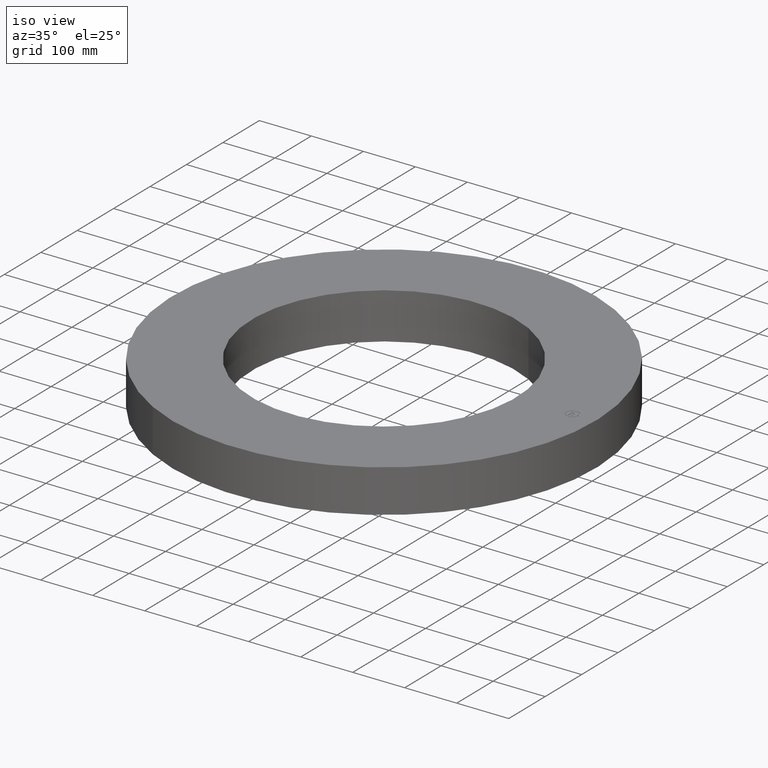
[diagram: clean part render]
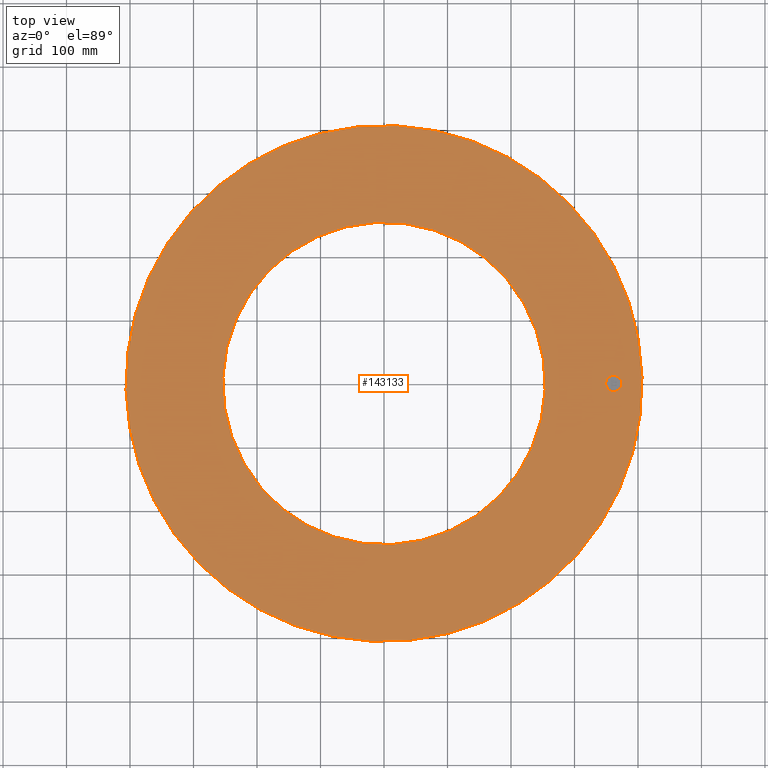
[diagram: tour spotlight — one face highlighted and labeled with its STEP entity id]
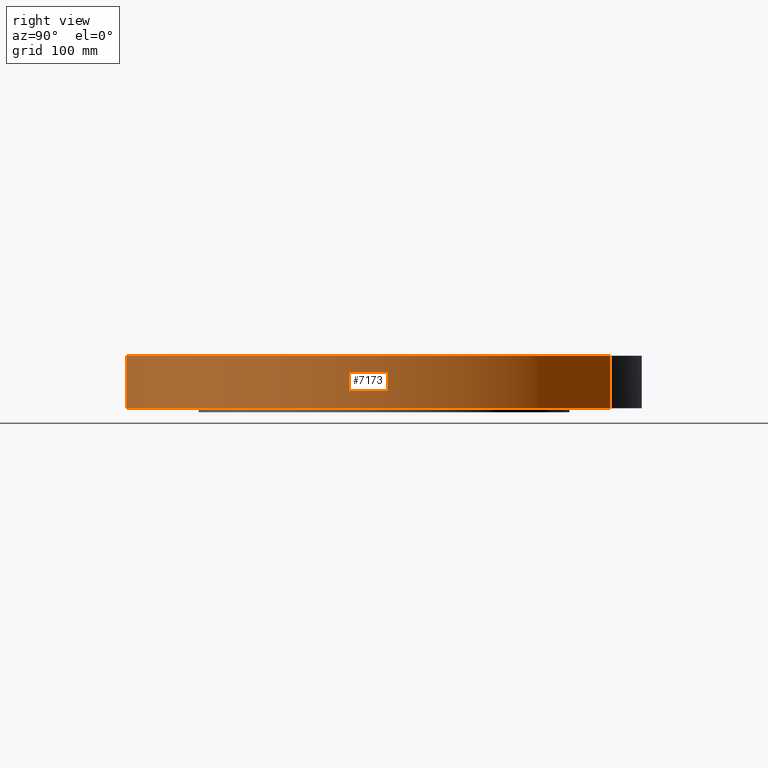
[diagram: tour spotlight — one face highlighted and labeled with its STEP entity id]
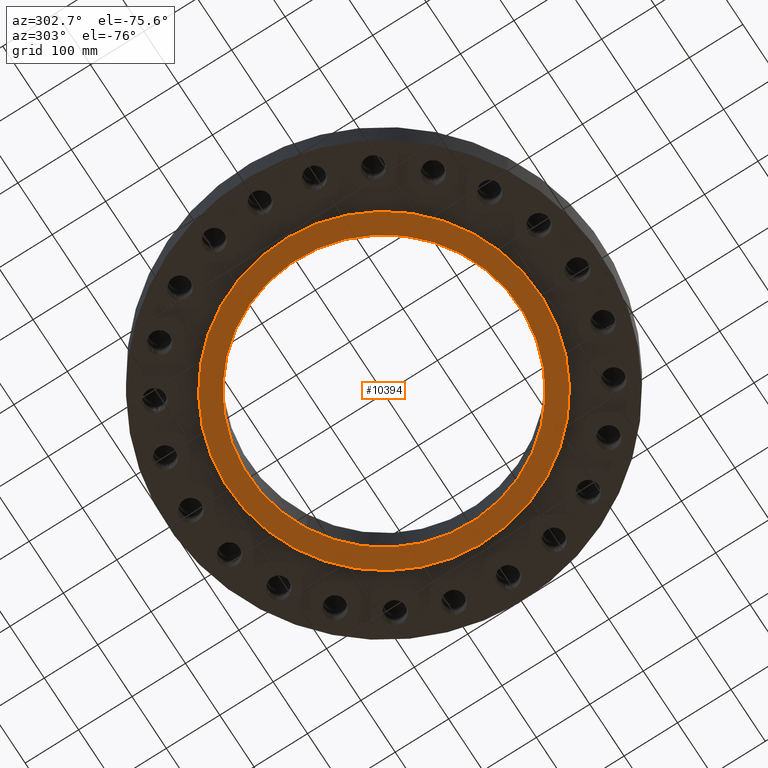
[diagram: tour spotlight — one face highlighted and labeled with its STEP entity id]
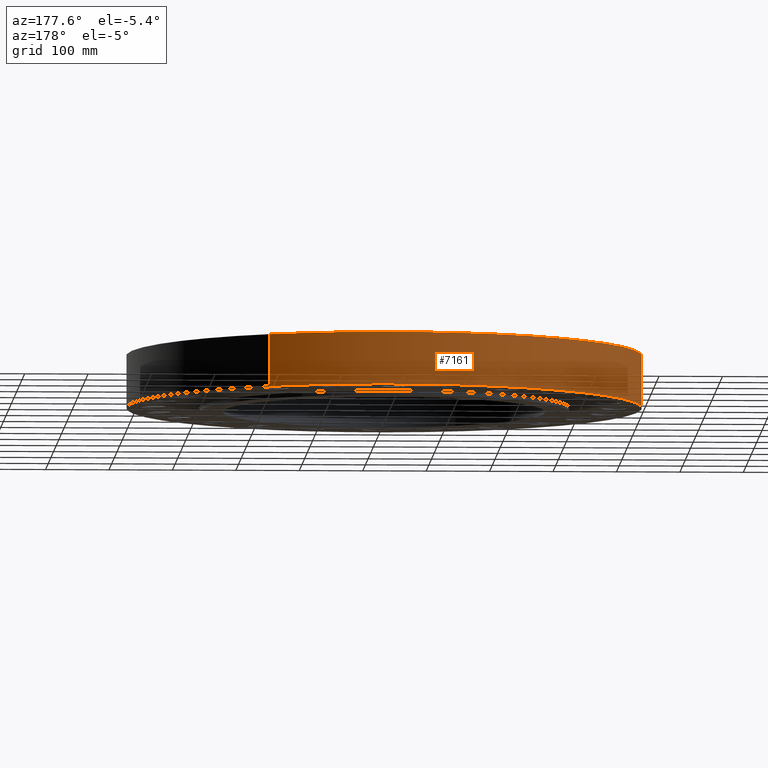
[diagram: tour spotlight — one face highlighted and labeled with its STEP entity id]
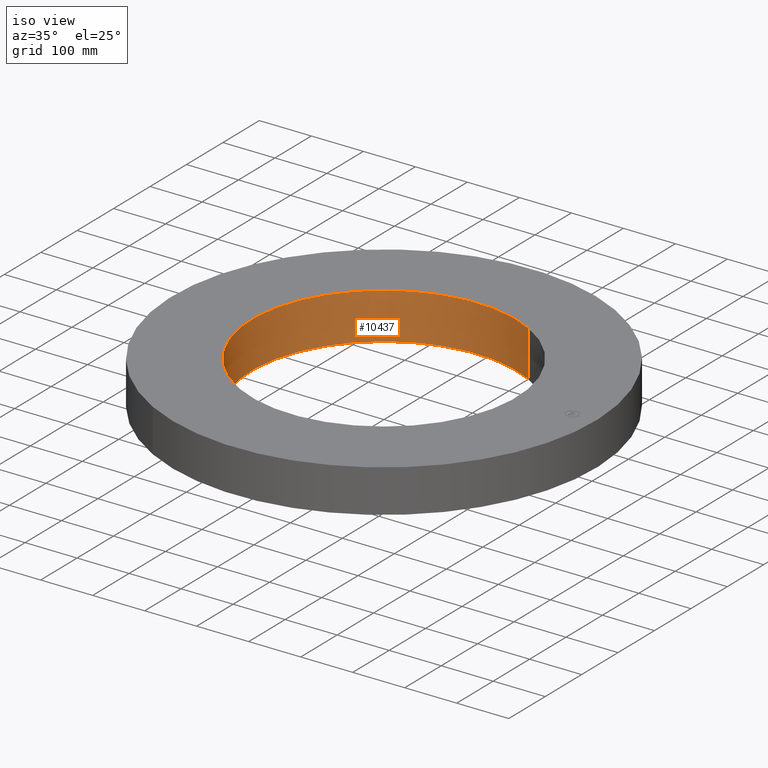
[diagram: tour spotlight — one face highlighted and labeled with its STEP entity id]
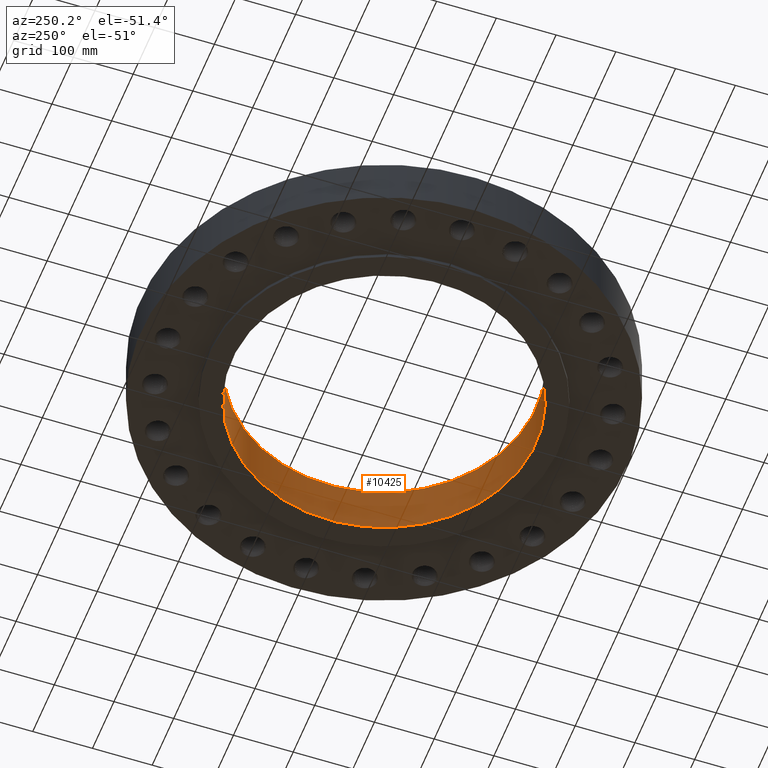
[diagram: tour spotlight — one face highlighted and labeled with its STEP entity id]
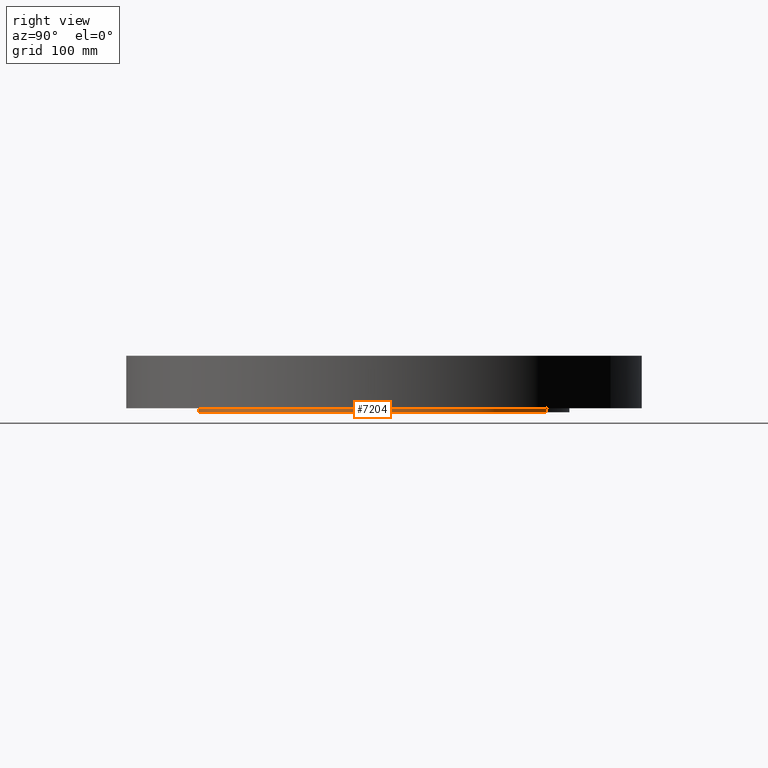
[diagram: tour spotlight — one face highlighted and labeled with its STEP entity id]
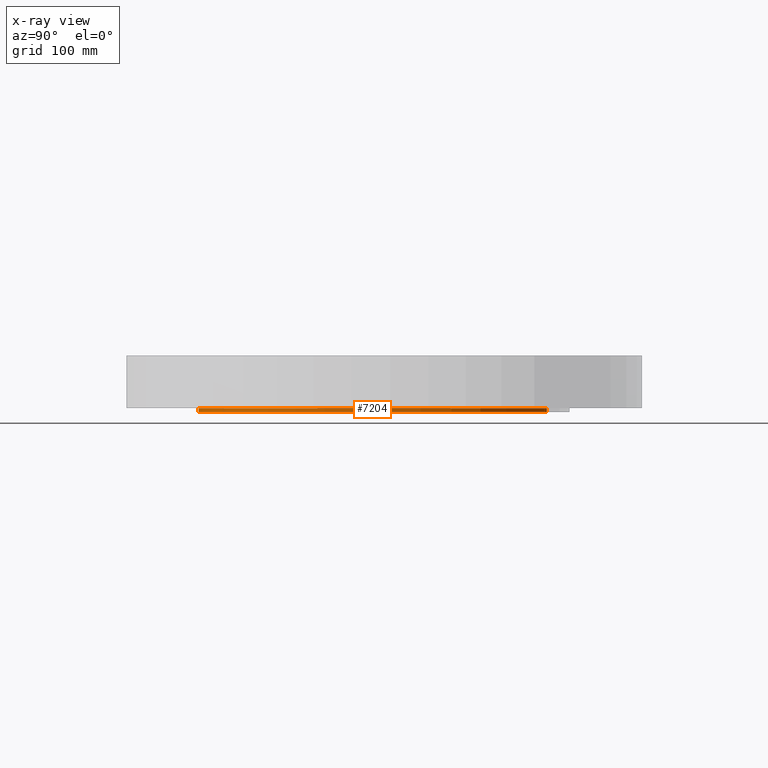
[diagram: x-ray of the same camera — body ghosted, this tour face saturated]
A machine part: a face-by-face anatomy tour. The part has 2794 B-rep faces; the first image is the clean iso view, then the 7 largest visible faces are spotlighted one at a time (largest first), each with its STEP entity span.

Face 1 — top view, entity #143133. In plain terms, the highlighted planar face has unit normal (0, 0, -1).
Definition (entity closure, byte-faithful):
#7145=AXIS2_PLACEMENT_3D('Circle Axis2P3D',#7143,#7144,$) ;
#7164=AXIS2_PLACEMENT_3D('Circle Axis2P3D',#7162,#7163,$) ;
#10402=AXIS2_PLACEMENT_3D('Circle Axis2P3D',#10400,#10401,$) ;
#10428=AXIS2_PLACEMENT_3D('Circle Axis2P3D',#10426,#10427,$) ;
#143105=AXIS2_PLACEMENT_3D('Plane Axis2P3D',#143102,#143103,#143104) ;
#143117=AXIS2_PLACEMENT_3D('Circle Axis2P3D',#143115,#143116,$) ;
#143126=AXIS2_PLACEMENT_3D('Circle Axis2P3D',#143124,#143125,$) ;
#7140=CARTESIAN_POINT('Vertex',(-7.6708086177,-14.0413209903,3.25000000001)) ;
#7143=CARTESIAN_POINT('Axis2P3D Location',(0.,0.,3.25000000001)) ;
#7147=CARTESIAN_POINT('Vertex',(7.6708086177,14.0413209903,3.25000000001)) ;
#7162=CARTESIAN_POINT('Axis2P3D Location',(0.,0.,3.25000000001)) ;
#10400=CARTESIAN_POINT('Axis2P3D Location',(0.,0.,3.25000000001)) ;
#10404=CARTESIAN_POINT('Vertex',(4.79425538606,8.77582561894,3.25000000001)) ;
#10406=CARTESIAN_POINT('Vertex',(-4.79425538606,-8.77582561894,3.25000000001)) ;
#10426=CARTESIAN_POINT('Axis2P3D Location',(0.,0.,3.25000000001)) ;
#143102=CARTESIAN_POINT('Axis2P3D Location',(0.,10.,3.25000000001)) ;
#143115=CARTESIAN_POINT('Axis2P3D Location',(14.2500000001,0.,3.25000000001)) ;
#143119=CARTESIAN_POINT('Vertex',(14.2500000001,-0.499999995002,3.25000000001)) ;
#143121=CARTESIAN_POINT('Vertex',(14.2500000001,0.499999995002,3.25000000001)) ;
#143124=CARTESIAN_POINT('Axis2P3D Location',(14.2500000001,0.,3.25000000001)) ;
#7144=DIRECTION('Axis2P3D Direction',(0.,0.,-0.0393700787402)) ;
#7163=DIRECTION('Axis2P3D Direction',(0.,0.,-0.0393700787402)) ;
#10401=DIRECTION('Axis2P3D Direction',(0.,0.,-0.0393700787402)) ;
#10427=DIRECTION('Axis2P3D Direction',(0.,0.,-0.0393700787402)) ;
#143103=DIRECTION('Axis2P3D Direction',(0.,0.,-0.0393700787402)) ;
#143104=DIRECTION('Axis2P3D XDirection',(0.0393700787402,0.,0.)) ;
#143116=DIRECTION('Axis2P3D Direction',(0.,0.,-0.0393700787402)) ;
#143125=DIRECTION('Axis2P3D Direction',(0.,0.,-0.0393700787402)) ;
#143108=ORIENTED_EDGE('',*,*,#7166,.F.) ;
#143109=ORIENTED_EDGE('',*,*,#7149,.F.) ;
#143112=ORIENTED_EDGE('',*,*,#10430,.T.) ;
#143113=ORIENTED_EDGE('',*,*,#10408,.T.) ;
#143130=ORIENTED_EDGE('',*,*,#143123,.F.) ;
#143131=ORIENTED_EDGE('',*,*,#143128,.F.) ;
#143114=FACE_BOUND('',#143111,.T.) ;
#143132=FACE_BOUND('',#143129,.T.) ;
#143133=ADVANCED_FACE('PartBody',(#143110,#143114,#143132),#143106,.F.) ;
#7146=CIRCLE('generated circle',#7145,16.0000000001) ;
#7165=CIRCLE('generated circle',#7164,16.0000000001) ;
#10403=CIRCLE('generated circle',#10402,10.) ;
#10429=CIRCLE('generated circle',#10428,10.) ;
#143118=CIRCLE('generated circle',#143117,0.499999995002) ;
#143127=CIRCLE('generated circle',#143126,0.499999995002) ;
#7149=EDGE_CURVE('',#7141,#7148,#7146,.T.) ;
#7166=EDGE_CURVE('',#7148,#7141,#7165,.T.) ;
#10408=EDGE_CURVE('',#10405,#10407,#10403,.T.) ;
#10430=EDGE_CURVE('',#10407,#10405,#10429,.T.) ;
#143123=EDGE_CURVE('',#143120,#143122,#143118,.F.) ;
#143128=EDGE_CURVE('',#143122,#143120,#143127,.F.) ;
#143107=EDGE_LOOP('',(#143108,#143109)) ;
#143111=EDGE_LOOP('',(#143112,#143113)) ;
#143129=EDGE_LOOP('',(#143130,#143131)) ;
#143110=FACE_OUTER_BOUND('',#143107,.T.) ;
#143106=PLANE('',#143105) ;
#7141=VERTEX_POINT('',#7140) ;
#7148=VERTEX_POINT('',#7147) ;
#10405=VERTEX_POINT('',#10404) ;
#10407=VERTEX_POINT('',#10406) ;
#143120=VERTEX_POINT('',#143119) ;
#143122=VERTEX_POINT('',#143121) ;

Face 2 — right view, entity #7173. In plain terms, the highlighted cylindrical surface (partial cylindrical patch) has radius 406.4 mm, axis along (0, 0, -1).
Definition (entity closure, byte-faithful):
#5994=AXIS2_PLACEMENT_3D('Circle Axis2P3D',#5992,#5993,$) ;
#7134=AXIS2_PLACEMENT_3D('Cylinder Axis2P3D',#7131,#7132,#7133) ;
#7164=AXIS2_PLACEMENT_3D('Circle Axis2P3D',#7162,#7163,$) ;
#5987=CARTESIAN_POINT('Vertex',(-7.6708086177,-14.0413209903,-4.9234457281E-014)) ;
#5989=CARTESIAN_POINT('Vertex',(7.6708086177,14.0413209903,-4.9234457281E-014)) ;
#5992=CARTESIAN_POINT('Axis2P3D Location',(0.,0.,0.)) ;
#7131=CARTESIAN_POINT('Axis2P3D Location',(0.,0.,1.50000000001)) ;
#7136=CARTESIAN_POINT('Line Origine',(-7.6708086177,-14.0413209903,1.62500000001)) ;
#7140=CARTESIAN_POINT('Vertex',(-7.6708086177,-14.0413209903,3.25000000001)) ;
#7147=CARTESIAN_POINT('Vertex',(7.6708086177,14.0413209903,3.25000000001)) ;
#7150=CARTESIAN_POINT('Line Origine',(7.6708086177,14.0413209903,1.62500000001)) ;
#7162=CARTESIAN_POINT('Axis2P3D Location',(0.,0.,3.25000000001)) ;
#5993=DIRECTION('Axis2P3D Direction',(0.,0.,-0.0393700787402)) ;
#7132=DIRECTION('Axis2P3D Direction',(0.,0.,-0.0393700787402)) ;
#7133=DIRECTION('Axis2P3D XDirection',(0.0188750212049,0.0345504945626,0.)) ;
#7137=DIRECTION('Vector Direction',(0.,0.,-0.0393700787402)) ;
#7151=DIRECTION('Vector Direction',(0.,0.,-0.0393700787402)) ;
#7163=DIRECTION('Axis2P3D Direction',(0.,0.,-0.0393700787402)) ;
#7138=VECTOR('Line Direction',#7137,0.0393700787402) ;
#7152=VECTOR('Line Direction',#7151,0.0393700787402) ;
#7168=ORIENTED_EDGE('',*,*,#5996,.F.) ;
#7169=ORIENTED_EDGE('',*,*,#7154,.T.) ;
#7170=ORIENTED_EDGE('',*,*,#7166,.T.) ;
#7171=ORIENTED_EDGE('',*,*,#7142,.F.) ;
#7173=ADVANCED_FACE('PartBody',(#7172),#7135,.T.) ;
#5995=CIRCLE('generated circle',#5994,16.0000000001) ;
#7165=CIRCLE('generated circle',#7164,16.0000000001) ;
#7135=CYLINDRICAL_SURFACE('generated cylinder',#7134,16.0000000001) ;
#5996=EDGE_CURVE('',#5990,#5988,#5995,.T.) ;
#7142=EDGE_CURVE('',#5988,#7141,#7139,.F.) ;
#7154=EDGE_CURVE('',#5990,#7148,#7153,.F.) ;
#7166=EDGE_CURVE('',#7148,#7141,#7165,.T.) ;
#7167=EDGE_LOOP('',(#7168,#7169,#7170,#7171)) ;
#7172=FACE_OUTER_BOUND('',#7167,.T.) ;
#7139=LINE('Line',#7136,#7138) ;
#7153=LINE('Line',#7150,#7152) ;
#5988=VERTEX_POINT('',#5987) ;
#5990=VERTEX_POINT('',#5989) ;
#7141=VERTEX_POINT('',#7140) ;
#7148=VERTEX_POINT('',#7147) ;

Face 3 — auxiliary view, entity #10394. In plain terms, the highlighted planar face has unit normal (0, 0, -1).
Definition (entity closure, byte-faithful):
#7181=AXIS2_PLACEMENT_3D('Circle Axis2P3D',#7179,#7180,$) ;
#7207=AXIS2_PLACEMENT_3D('Circle Axis2P3D',#7205,#7206,$) ;
#10370=AXIS2_PLACEMENT_3D('Plane Axis2P3D',#10367,#10368,#10369) ;
#10378=AXIS2_PLACEMENT_3D('Circle Axis2P3D',#10376,#10377,$) ;
#10387=AXIS2_PLACEMENT_3D('Circle Axis2P3D',#10385,#10386,$) ;
#7179=CARTESIAN_POINT('Axis2P3D Location',(0.,0.,-0.250000000001)) ;
#7183=CARTESIAN_POINT('Vertex',(5.51339369397,10.0921994618,-0.250000000001)) ;
#7185=CARTESIAN_POINT('Vertex',(-5.51339369397,-10.0921994618,-0.250000000001)) ;
#7205=CARTESIAN_POINT('Axis2P3D Location',(0.,0.,-0.250000000001)) ;
#10367=CARTESIAN_POINT('Axis2P3D Location',(0.,11.5,-0.250000000001)) ;
#10376=CARTESIAN_POINT('Axis2P3D Location',(0.,0.,-0.250000000001)) ;
#10380=CARTESIAN_POINT('Vertex',(4.79425538606,8.77582561894,-0.250000000001)) ;
#10382=CARTESIAN_POINT('Vertex',(-4.79425538606,-8.77582561894,-0.250000000001)) ;
#10385=CARTESIAN_POINT('Axis2P3D Location',(0.,0.,-0.250000000001)) ;
#7180=DIRECTION('Axis2P3D Direction',(0.,0.,-0.0393700787402)) ;
#7206=DIRECTION('Axis2P3D Direction',(0.,0.,-0.0393700787402)) ;
#10368=DIRECTION('Axis2P3D Direction',(0.,0.,-0.0393700787402)) ;
#10369=DIRECTION('Axis2P3D XDirection',(0.0393700787402,0.,0.)) ;
#10377=DIRECTION('Axis2P3D Direction',(0.,0.,-0.0393700787402)) ;
#10386=DIRECTION('Axis2P3D Direction',(0.,0.,-0.0393700787402)) ;
#10373=ORIENTED_EDGE('',*,*,#7209,.T.) ;
#10374=ORIENTED_EDGE('',*,*,#7187,.T.) ;
#10391=ORIENTED_EDGE('',*,*,#10384,.F.) ;
#10392=ORIENTED_EDGE('',*,*,#10389,.F.) ;
#10393=FACE_BOUND('',#10390,.T.) ;
#10394=ADVANCED_FACE('PartBody',(#10375,#10393),#10371,.T.) ;
#7182=CIRCLE('generated circle',#7181,11.5) ;
#7208=CIRCLE('generated circle',#7207,11.5) ;
#10379=CIRCLE('generated circle',#10378,10.) ;
#10388=CIRCLE('generated circle',#10387,10.) ;
#7187=EDGE_CURVE('',#7184,#7186,#7182,.T.) ;
#7209=EDGE_CURVE('',#7186,#7184,#7208,.T.) ;
#10384=EDGE_CURVE('',#10381,#10383,#10379,.T.) ;
#10389=EDGE_CURVE('',#10383,#10381,#10388,.T.) ;
#10372=EDGE_LOOP('',(#10373,#10374)) ;
#10390=EDGE_LOOP('',(#10391,#10392)) ;
#10375=FACE_OUTER_BOUND('',#10372,.T.) ;
#10371=PLANE('',#10370) ;
#7184=VERTEX_POINT('',#7183) ;
#7186=VERTEX_POINT('',#7185) ;
#10381=VERTEX_POINT('',#10380) ;
#10383=VERTEX_POINT('',#10382) ;

Face 4 — auxiliary view, entity #7161. In plain terms, the highlighted cylindrical surface (partial cylindrical patch) has radius 406.4 mm, axis along (0, 0, -1).
Definition (entity closure, byte-faithful):
#5985=AXIS2_PLACEMENT_3D('Circle Axis2P3D',#5983,#5984,$) ;
#7134=AXIS2_PLACEMENT_3D('Cylinder Axis2P3D',#7131,#7132,#7133) ;
#7145=AXIS2_PLACEMENT_3D('Circle Axis2P3D',#7143,#7144,$) ;
#5983=CARTESIAN_POINT('Axis2P3D Location',(0.,0.,0.)) ;
#5987=CARTESIAN_POINT('Vertex',(-7.6708086177,-14.0413209903,-4.9234457281E-014)) ;
#5989=CARTESIAN_POINT('Vertex',(7.6708086177,14.0413209903,-4.9234457281E-014)) ;
#7131=CARTESIAN_POINT('Axis2P3D Location',(0.,0.,1.50000000001)) ;
#7136=CARTESIAN_POINT('Line Origine',(-7.6708086177,-14.0413209903,1.62500000001)) ;
#7140=CARTESIAN_POINT('Vertex',(-7.6708086177,-14.0413209903,3.25000000001)) ;
#7143=CARTESIAN_POINT('Axis2P3D Location',(0.,0.,3.25000000001)) ;
#7147=CARTESIAN_POINT('Vertex',(7.6708086177,14.0413209903,3.25000000001)) ;
#7150=CARTESIAN_POINT('Line Origine',(7.6708086177,14.0413209903,1.62500000001)) ;
#5984=DIRECTION('Axis2P3D Direction',(0.,0.,-0.0393700787402)) ;
#7132=DIRECTION('Axis2P3D Direction',(0.,0.,-0.0393700787402)) ;
#7133=DIRECTION('Axis2P3D XDirection',(0.0188750212049,0.0345504945626,0.)) ;
#7137=DIRECTION('Vector Direction',(0.,0.,-0.0393700787402)) ;
#7144=DIRECTION('Axis2P3D Direction',(0.,0.,-0.0393700787402)) ;
#7151=DIRECTION('Vector Direction',(0.,0.,-0.0393700787402)) ;
#7138=VECTOR('Line Direction',#7137,0.0393700787402) ;
#7152=VECTOR('Line Direction',#7151,0.0393700787402) ;
#7156=ORIENTED_EDGE('',*,*,#5991,.F.) ;
#7157=ORIENTED_EDGE('',*,*,#7142,.T.) ;
#7158=ORIENTED_EDGE('',*,*,#7149,.T.) ;
#7159=ORIENTED_EDGE('',*,*,#7154,.F.) ;
#7161=ADVANCED_FACE('PartBody',(#7160),#7135,.T.) ;
#5986=CIRCLE('generated circle',#5985,16.0000000001) ;
#7146=CIRCLE('generated circle',#7145,16.0000000001) ;
#7135=CYLINDRICAL_SURFACE('generated cylinder',#7134,16.0000000001) ;
#5991=EDGE_CURVE('',#5988,#5990,#5986,.T.) ;
#7142=EDGE_CURVE('',#5988,#7141,#7139,.F.) ;
#7149=EDGE_CURVE('',#7141,#7148,#7146,.T.) ;
#7154=EDGE_CURVE('',#5990,#7148,#7153,.F.) ;
#7155=EDGE_LOOP('',(#7156,#7157,#7158,#7159)) ;
#7160=FACE_OUTER_BOUND('',#7155,.T.) ;
#7139=LINE('Line',#7136,#7138) ;
#7153=LINE('Line',#7150,#7152) ;
#5988=VERTEX_POINT('',#5987) ;
#5990=VERTEX_POINT('',#5989) ;
#7141=VERTEX_POINT('',#7140) ;
#7148=VERTEX_POINT('',#7147) ;

Face 5 — iso view, entity #10437. In plain terms, the highlighted cylindrical surface (partial cylindrical patch) has radius 254 mm, axis along (0, 0, -1).
Definition (entity closure, byte-faithful):
#10387=AXIS2_PLACEMENT_3D('Circle Axis2P3D',#10385,#10386,$) ;
#10398=AXIS2_PLACEMENT_3D('Cylinder Axis2P3D',#10395,#10396,#10397) ;
#10428=AXIS2_PLACEMENT_3D('Circle Axis2P3D',#10426,#10427,$) ;
#10380=CARTESIAN_POINT('Vertex',(4.79425538606,8.77582561894,-0.250000000001)) ;
#10382=CARTESIAN_POINT('Vertex',(-4.79425538606,-8.77582561894,-0.250000000001)) ;
#10385=CARTESIAN_POINT('Axis2P3D Location',(0.,0.,-0.250000000001)) ;
#10395=CARTESIAN_POINT('Axis2P3D Location',(0.,0.,1.50000000001)) ;
#10404=CARTESIAN_POINT('Vertex',(4.79425538606,8.77582561894,3.25000000001)) ;
#10406=CARTESIAN_POINT('Vertex',(-4.79425538606,-8.77582561894,3.25000000001)) ;
#10409=CARTESIAN_POINT('Line Origine',(4.79425538606,8.77582561894,1.50000000001)) ;
#10414=CARTESIAN_POINT('Line Origine',(-4.79425538606,-8.77582561894,1.50000000001)) ;
#10426=CARTESIAN_POINT('Axis2P3D Location',(0.,0.,3.25000000001)) ;
#10386=DIRECTION('Axis2P3D Direction',(0.,0.,-0.0393700787402)) ;
#10396=DIRECTION('Axis2P3D Direction',(0.,0.,-0.0393700787402)) ;
#10397=DIRECTION('Axis2P3D XDirection',(-0.0188750212049,-0.0345504945626,0.)) ;
#10410=DIRECTION('Vector Direction',(0.,0.,-0.0393700787402)) ;
#10415=DIRECTION('Vector Direction',(0.,0.,-0.0393700787402)) ;
#10427=DIRECTION('Axis2P3D Direction',(0.,0.,-0.0393700787402)) ;
#10411=VECTOR('Line Direction',#10410,0.0393700787402) ;
#10416=VECTOR('Line Direction',#10415,0.0393700787402) ;
#10432=ORIENTED_EDGE('',*,*,#10430,.F.) ;
#10433=ORIENTED_EDGE('',*,*,#10418,.T.) ;
#10434=ORIENTED_EDGE('',*,*,#10389,.T.) ;
#10435=ORIENTED_EDGE('',*,*,#10413,.F.) ;
#10437=ADVANCED_FACE('PartBody',(#10436),#10399,.F.) ;
#10388=CIRCLE('generated circle',#10387,10.) ;
#10429=CIRCLE('generated circle',#10428,10.) ;
#10399=CYLINDRICAL_SURFACE('generated cylinder',#10398,10.) ;
#10389=EDGE_CURVE('',#10383,#10381,#10388,.T.) ;
#10413=EDGE_CURVE('',#10405,#10381,#10412,.T.) ;
#10418=EDGE_CURVE('',#10407,#10383,#10417,.T.) ;
#10430=EDGE_CURVE('',#10407,#10405,#10429,.T.) ;
#10431=EDGE_LOOP('',(#10432,#10433,#10434,#10435)) ;
#10436=FACE_OUTER_BOUND('',#10431,.T.) ;
#10412=LINE('Line',#10409,#10411) ;
#10417=LINE('Line',#10414,#10416) ;
#10381=VERTEX_POINT('',#10380) ;
#10383=VERTEX_POINT('',#10382) ;
#10405=VERTEX_POINT('',#10404) ;
#10407=VERTEX_POINT('',#10406) ;

Face 6 — auxiliary view, entity #10425. In plain terms, the highlighted cylindrical surface (partial cylindrical patch) has radius 254 mm, axis along (0, 0, -1).
Definition (entity closure, byte-faithful):
#10378=AXIS2_PLACEMENT_3D('Circle Axis2P3D',#10376,#10377,$) ;
#10398=AXIS2_PLACEMENT_3D('Cylinder Axis2P3D',#10395,#10396,#10397) ;
#10402=AXIS2_PLACEMENT_3D('Circle Axis2P3D',#10400,#10401,$) ;
#10376=CARTESIAN_POINT('Axis2P3D Location',(0.,0.,-0.250000000001)) ;
#10380=CARTESIAN_POINT('Vertex',(4.79425538606,8.77582561894,-0.250000000001)) ;
#10382=CARTESIAN_POINT('Vertex',(-4.79425538606,-8.77582561894,-0.250000000001)) ;
#10395=CARTESIAN_POINT('Axis2P3D Location',(0.,0.,1.50000000001)) ;
#10400=CARTESIAN_POINT('Axis2P3D Location',(0.,0.,3.25000000001)) ;
#10404=CARTESIAN_POINT('Vertex',(4.79425538606,8.77582561894,3.25000000001)) ;
#10406=CARTESIAN_POINT('Vertex',(-4.79425538606,-8.77582561894,3.25000000001)) ;
#10409=CARTESIAN_POINT('Line Origine',(4.79425538606,8.77582561894,1.50000000001)) ;
#10414=CARTESIAN_POINT('Line Origine',(-4.79425538606,-8.77582561894,1.50000000001)) ;
#10377=DIRECTION('Axis2P3D Direction',(0.,0.,-0.0393700787402)) ;
#10396=DIRECTION('Axis2P3D Direction',(0.,0.,-0.0393700787402)) ;
#10397=DIRECTION('Axis2P3D XDirection',(-0.0188750212049,-0.0345504945626,0.)) ;
#10401=DIRECTION('Axis2P3D Direction',(0.,0.,-0.0393700787402)) ;
#10410=DIRECTION('Vector Direction',(0.,0.,-0.0393700787402)) ;
#10415=DIRECTION('Vector Direction',(0.,0.,-0.0393700787402)) ;
#10411=VECTOR('Line Direction',#10410,0.0393700787402) ;
#10416=VECTOR('Line Direction',#10415,0.0393700787402) ;
#10420=ORIENTED_EDGE('',*,*,#10408,.F.) ;
#10421=ORIENTED_EDGE('',*,*,#10413,.T.) ;
#10422=ORIENTED_EDGE('',*,*,#10384,.T.) ;
#10423=ORIENTED_EDGE('',*,*,#10418,.F.) ;
#10425=ADVANCED_FACE('PartBody',(#10424),#10399,.F.) ;
#10379=CIRCLE('generated circle',#10378,10.) ;
#10403=CIRCLE('generated circle',#10402,10.) ;
#10399=CYLINDRICAL_SURFACE('generated cylinder',#10398,10.) ;
#10384=EDGE_CURVE('',#10381,#10383,#10379,.T.) ;
#10408=EDGE_CURVE('',#10405,#10407,#10403,.T.) ;
#10413=EDGE_CURVE('',#10405,#10381,#10412,.T.) ;
#10418=EDGE_CURVE('',#10407,#10383,#10417,.T.) ;
#10419=EDGE_LOOP('',(#10420,#10421,#10422,#10423)) ;
#10424=FACE_OUTER_BOUND('',#10419,.T.) ;
#10412=LINE('Line',#10409,#10411) ;
#10417=LINE('Line',#10414,#10416) ;
#10381=VERTEX_POINT('',#10380) ;
#10383=VERTEX_POINT('',#10382) ;
#10405=VERTEX_POINT('',#10404) ;
#10407=VERTEX_POINT('',#10406) ;

Face 7 — right view, entity #7204. An x-ray twin of the same camera follows (body ghosted, this face saturated) — the face is partly hidden behind the body. In plain terms, the highlighted cylindrical surface (partial cylindrical patch) has radius 292.1 mm, axis along (0, 0, -1).
Definition (entity closure, byte-faithful):
#6010=AXIS2_PLACEMENT_3D('Circle Axis2P3D',#6008,#6009,$) ;
#7177=AXIS2_PLACEMENT_3D('Cylinder Axis2P3D',#7174,#7175,#7176) ;
#7181=AXIS2_PLACEMENT_3D('Circle Axis2P3D',#7179,#7180,$) ;
#6008=CARTESIAN_POINT('Axis2P3D Location',(0.,0.,0.)) ;
#6012=CARTESIAN_POINT('Vertex',(5.51339369397,10.0921994618,-3.49676543189E-014)) ;
#6014=CARTESIAN_POINT('Vertex',(-5.51339369397,-10.0921994618,-3.49676543189E-014)) ;
#7174=CARTESIAN_POINT('Axis2P3D Location',(0.,0.,1.50000000001)) ;
#7179=CARTESIAN_POINT('Axis2P3D Location',(0.,0.,-0.250000000001)) ;
#7183=CARTESIAN_POINT('Vertex',(5.51339369397,10.0921994618,-0.250000000001)) ;
#7185=CARTESIAN_POINT('Vertex',(-5.51339369397,-10.0921994618,-0.250000000001)) ;
#7188=CARTESIAN_POINT('Line Origine',(5.51339369397,10.0921994618,-0.125000000001)) ;
#7193=CARTESIAN_POINT('Line Origine',(-5.51339369397,-10.0921994618,-0.125000000001)) ;
#6009=DIRECTION('Axis2P3D Direction',(0.,0.,-0.0393700787402)) ;
#7175=DIRECTION('Axis2P3D Direction',(0.,0.,-0.0393700787402)) ;
#7176=DIRECTION('Axis2P3D XDirection',(-0.0188750212049,-0.0345504945626,0.)) ;
#7180=DIRECTION('Axis2P3D Direction',(0.,0.,-0.0393700787402)) ;
#7189=DIRECTION('Vector Direction',(0.,0.,-0.0393700787402)) ;
#7194=DIRECTION('Vector Direction',(0.,0.,-0.0393700787402)) ;
#7190=VECTOR('Line Direction',#7189,0.0393700787402) ;
#7195=VECTOR('Line Direction',#7194,0.0393700787402) ;
#7199=ORIENTED_EDGE('',*,*,#7187,.F.) ;
#7200=ORIENTED_EDGE('',*,*,#7192,.T.) ;
#7201=ORIENTED_EDGE('',*,*,#6016,.T.) ;
#7202=ORIENTED_EDGE('',*,*,#7197,.F.) ;
#7204=ADVANCED_FACE('PartBody',(#7203),#7178,.T.) ;
#6011=CIRCLE('generated circle',#6010,11.5) ;
#7182=CIRCLE('generated circle',#7181,11.5) ;
#7178=CYLINDRICAL_SURFACE('generated cylinder',#7177,11.5) ;
#6016=EDGE_CURVE('',#6013,#6015,#6011,.T.) ;
#7187=EDGE_CURVE('',#7184,#7186,#7182,.T.) ;
#7192=EDGE_CURVE('',#7184,#6013,#7191,.F.) ;
#7197=EDGE_CURVE('',#7186,#6015,#7196,.F.) ;
#7198=EDGE_LOOP('',(#7199,#7200,#7201,#7202)) ;
#7203=FACE_OUTER_BOUND('',#7198,.T.) ;
#7191=LINE('Line',#7188,#7190) ;
#7196=LINE('Line',#7193,#7195) ;
#6013=VERTEX_POINT('',#6012) ;
#6015=VERTEX_POINT('',#6014) ;
#7184=VERTEX_POINT('',#7183) ;
#7186=VERTEX_POINT('',#7185) ;